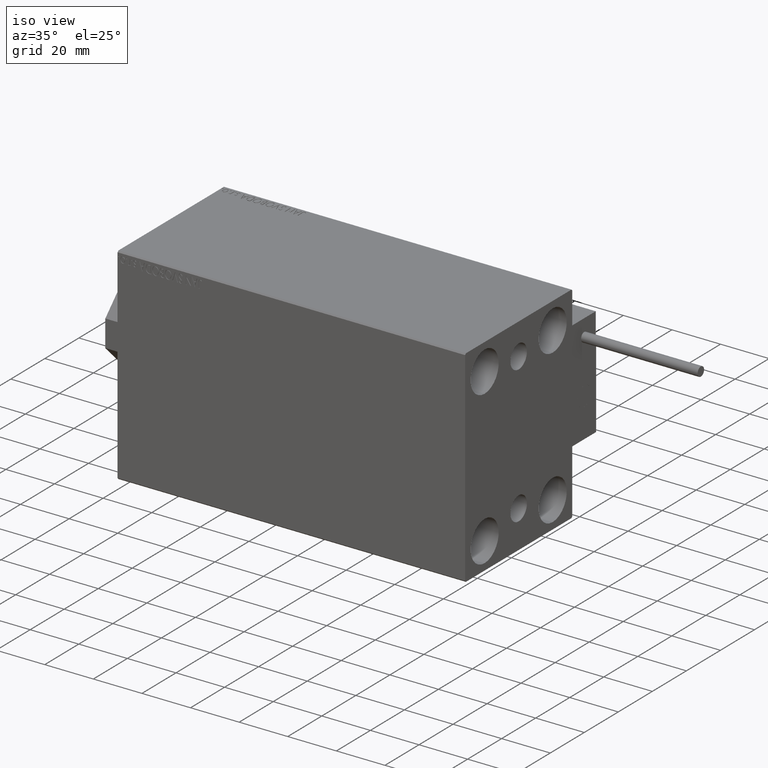
[diagram: clean part render]
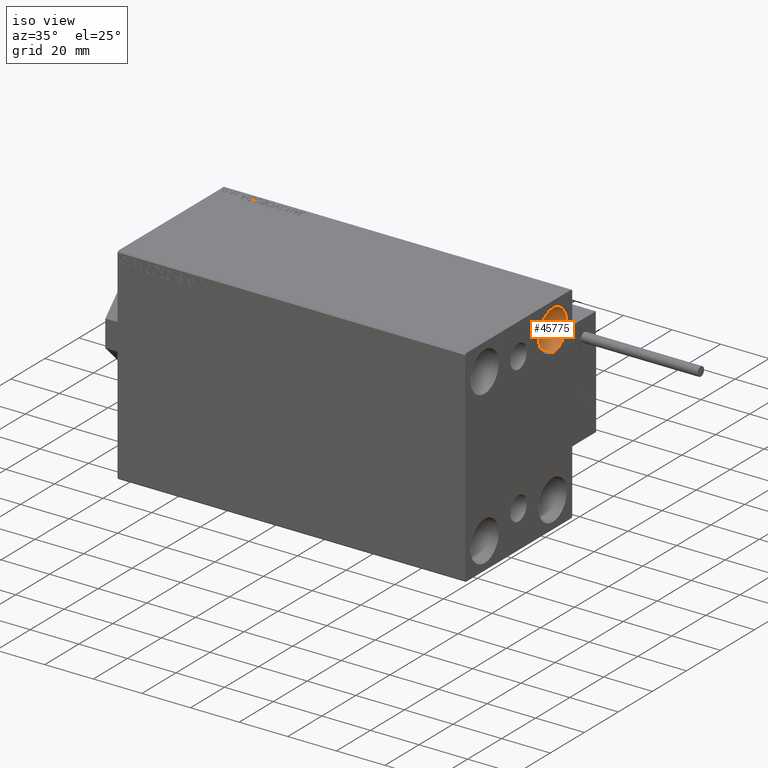
[diagram: same view with one face highlighted and labeled with its STEP entity id]
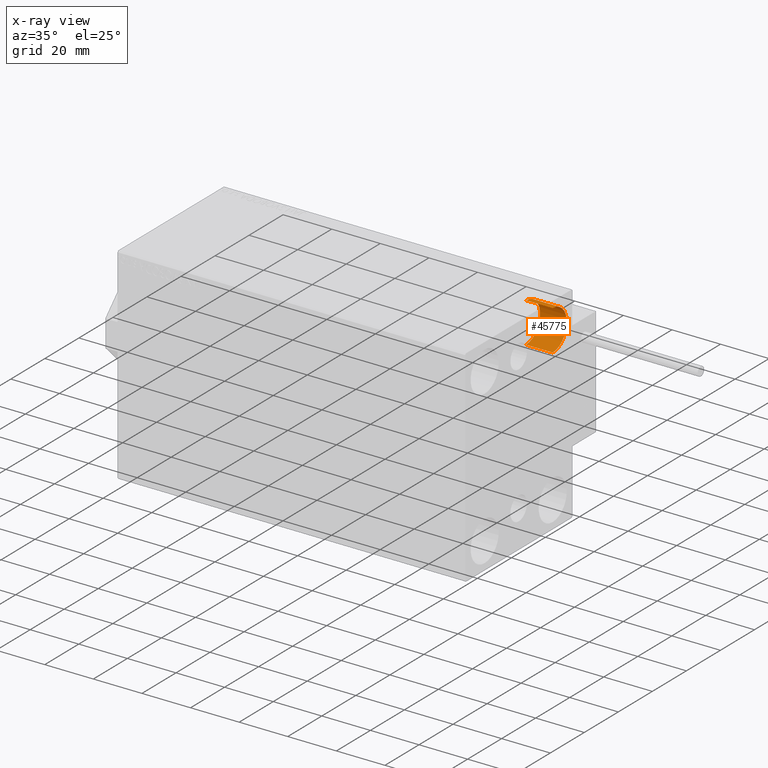
[diagram: x-ray of the same camera — body ghosted, the highlighted face saturated]
A machine part, iso view. The second image highlights one B-rep face of the part: STEP entity #45775.
The next image is the same camera in x-ray: the body ghosted, the highlighted face saturated — about 0% of this face is hidden behind the body in this view.
In plain terms, the highlighted cylindrical surface (edge-blend (fillet) strip) has radius 8.25 mm, axis along (1, 0, 0).
Its self-contained STEP definition (entity closure, byte-faithful):
#114 = DIRECTION ( 'NONE',  ( 0.000000000000000000, 0.000000000000000000, -1.000000000000000000 ) ) ;
#3116 = VERTEX_POINT ( 'NONE', #44854 ) ;
#4943 = DIRECTION ( 'NONE',  ( 1.000000000000000000, -0.000000000000000000, -0.000000000000000000 ) ) ;
#6094 = AXIS2_PLACEMENT_3D ( 'NONE', #45712, #22917, #114 ) ;
#6216 = CARTESIAN_POINT ( 'NONE',  ( 143.0000000000000000, 20.00000000000000355, 39.74999999999999289 ) ) ;
#8707 = EDGE_LOOP ( 'NONE', ( #25869, #11696, #14374, #18384 ) ) ;
#9042 = CARTESIAN_POINT ( 'NONE',  ( 131.9999999999999716, 20.00000000000000355, 23.25000000000000355 ) ) ;
#9538 = CIRCLE ( 'NONE', #44290, 8.249999999999992895 ) ;
#10697 = EDGE_CURVE ( 'NONE', #42743, #3116, #40437, .T. ) ;
#11696 = ORIENTED_EDGE ( 'NONE', *, *, #49888, .T. ) ;
#12764 = VERTEX_POINT ( 'NONE', #34057 ) ;
#14374 = ORIENTED_EDGE ( 'NONE', *, *, #10697, .T. ) ;
#16683 = VECTOR ( 'NONE', #4943, 1000.000000000000000 ) ;
#18384 = ORIENTED_EDGE ( 'NONE', *, *, #35890, .F. ) ;
#18391 = DIRECTION ( 'NONE',  ( 0.000000000000000000, 0.000000000000000000, 1.000000000000000000 ) ) ;
#19596 = CARTESIAN_POINT ( 'NONE',  ( 131.9999999999999716, 20.00000000000000355, 31.50000000000000000 ) ) ;
#22917 = DIRECTION ( 'NONE',  ( 1.000000000000000000, -0.000000000000000000, -0.000000000000000000 ) ) ;
#25869 = ORIENTED_EDGE ( 'NONE', *, *, #48826, .F. ) ;
#28221 = LINE ( 'NONE', #28477, #16683 ) ;
#28477 = CARTESIAN_POINT ( 'NONE',  ( 131.9999999999999716, 20.00000000000000355, 39.74999999999999289 ) ) ;
#29767 = CARTESIAN_POINT ( 'NONE',  ( 143.0000000000000000, 20.00000000000000355, 31.50000000000000000 ) ) ;
#30137 = VECTOR ( 'NONE', #43980, 1000.000000000000000 ) ;
#30513 = CYLINDRICAL_SURFACE ( 'NONE', #6094, 8.249999999999996447 ) ;
#32040 = VERTEX_POINT ( 'NONE', #6216 ) ;
#34057 = CARTESIAN_POINT ( 'NONE',  ( 131.9999999999999716, 20.00000000000000355, 39.74999999999999289 ) ) ;
#34795 = FACE_OUTER_BOUND ( 'NONE', #8707, .T. ) ;
#35890 = EDGE_CURVE ( 'NONE', #32040, #3116, #43046, .T. ) ;
#37172 = CARTESIAN_POINT ( 'NONE',  ( 131.9999999999999716, 20.00000000000000355, 23.25000000000000355 ) ) ;
#38337 = DIRECTION ( 'NONE',  ( 0.000000000000000000, 0.000000000000000000, 1.000000000000000000 ) ) ;
#40437 = LINE ( 'NONE', #9042, #30137 ) ;
#41424 = AXIS2_PLACEMENT_3D ( 'NONE', #29767, #45212, #18391 ) ;
#42743 = VERTEX_POINT ( 'NONE', #37172 ) ;
#43046 = CIRCLE ( 'NONE', #41424, 8.249999999999992895 ) ;
#43128 = DIRECTION ( 'NONE',  ( -1.000000000000000000, -0.000000000000000000, -0.000000000000000000 ) ) ;
#43980 = DIRECTION ( 'NONE',  ( 1.000000000000000000, -0.000000000000000000, -0.000000000000000000 ) ) ;
#44290 = AXIS2_PLACEMENT_3D ( 'NONE', #19596, #43128, #38337 ) ;
#44854 = CARTESIAN_POINT ( 'NONE',  ( 143.0000000000000000, 20.00000000000000355, 23.25000000000000355 ) ) ;
#45212 = DIRECTION ( 'NONE',  ( -1.000000000000000000, -0.000000000000000000, -0.000000000000000000 ) ) ;
#45712 = CARTESIAN_POINT ( 'NONE',  ( 131.9999999999999716, 20.00000000000000355, 31.50000000000000000 ) ) ;
#45775 = ADVANCED_FACE ( 'NONE', ( #34795 ), #30513, .F. ) ;
#48826 = EDGE_CURVE ( 'NONE', #12764, #32040, #28221, .T. ) ;
#49888 = EDGE_CURVE ( 'NONE', #12764, #42743, #9538, .T. ) ;